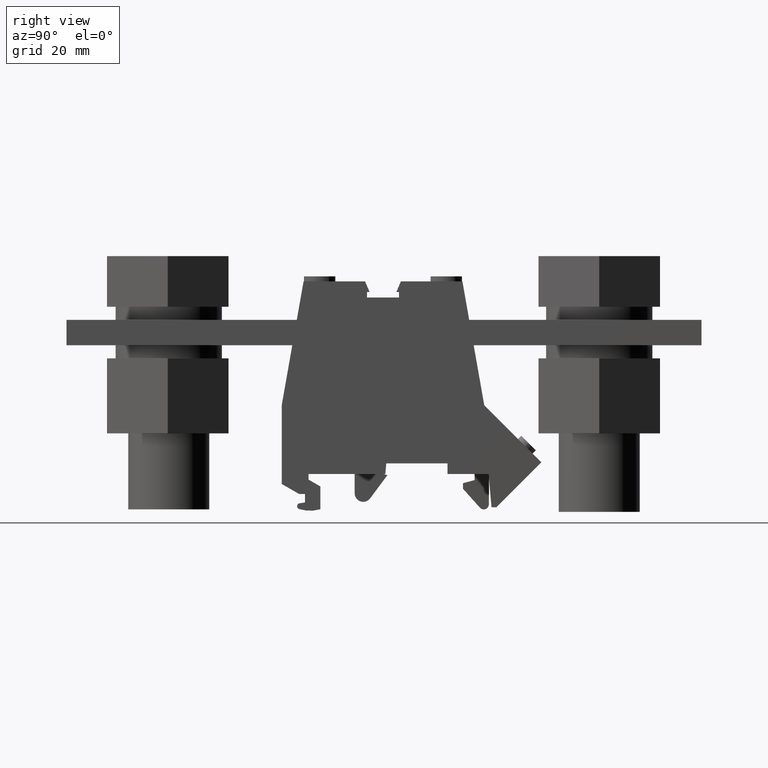
[diagram: clean part render]
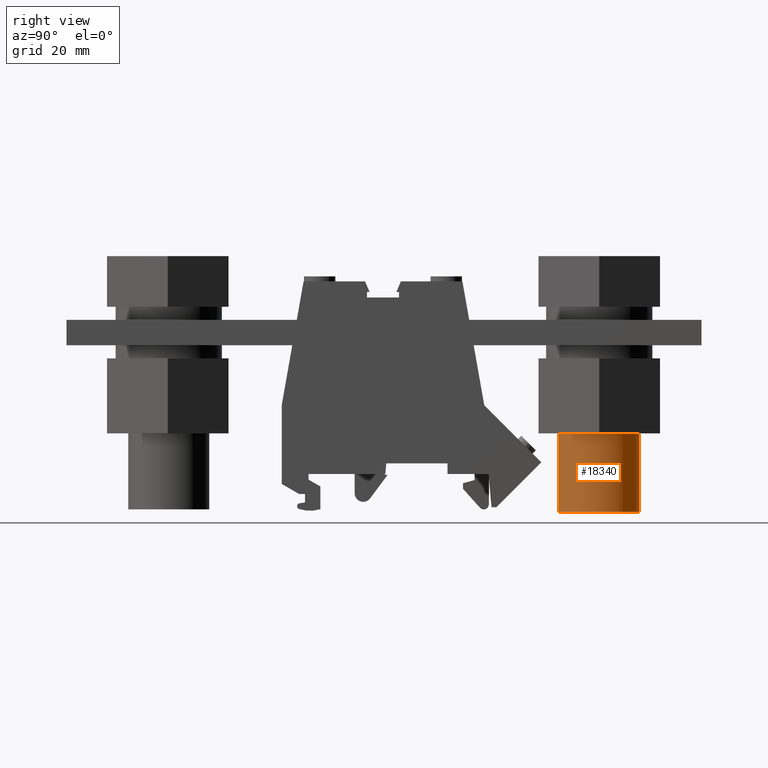
[diagram: same view with one face highlighted and labeled with its STEP entity id]
A machine part, right view. The second image highlights one B-rep face of the part: STEP entity #18340.
In plain terms, the highlighted cylindrical surface (partial cylindrical patch) has radius 8 mm, axis along (0, 0, 1).
Its self-contained STEP definition (entity closure, byte-faithful):
#2630=CARTESIAN_POINT('',(-197.907551201959,725.056092873311,
2.19999999999998));
#2640=DIRECTION('',(1.7489243749717E-28,1.,1.00974195868263E-28));
#2650=DIRECTION('',(-1.,1.7489243749717E-28,1.76596232397172E-56));
#2660=AXIS2_PLACEMENT_3D('',#2630,#2640,#2650);
#2670=CIRCLE('',#2660,8.);
#2680=CARTESIAN_POINT('',(-189.907551201959,725.056092873311,
2.19999999999998));
#2690=VERTEX_POINT('',#2680);
#2700=CARTESIAN_POINT('',(-205.907551201959,725.056092873311,
2.19999999999998));
#2710=VERTEX_POINT('',#2700);
#2740=EDGE_CURVE('',#2710,#2690,#2670,.T.);
#12160=CARTESIAN_POINT('',(-197.907551201959,740.556092873311,
2.19999999999998));
#12170=DIRECTION('',(1.7489243749717E-28,1.,1.00974195868263E-28));
#12180=DIRECTION('',(-1.,1.7489243749717E-28,1.76596232397172E-56));
#12190=AXIS2_PLACEMENT_3D('',#12160,#12170,#12180);
#12200=CIRCLE('',#12190,8.);
#12210=CARTESIAN_POINT('',(-205.907551201959,740.556092873311,
2.19999999999998));
#12220=VERTEX_POINT('',#12210);
#12230=CARTESIAN_POINT('',(-189.907551201959,740.556092873311,
2.19999999999998));
#12240=VERTEX_POINT('',#12230);
#12250=EDGE_CURVE('',#12220,#12240,#12200,.T.);
#18130=CARTESIAN_POINT('',(-197.907551201959,741.056092873312,
2.19999999999998));
#18140=DIRECTION('',(1.7489243749717E-28,1.,1.00974195868263E-28));
#18150=DIRECTION('',(-1.,1.7489243749717E-28,1.76596232397172E-56));
#18160=AXIS2_PLACEMENT_3D('',#18130,#18140,#18150);
#18170=CYLINDRICAL_SURFACE('',#18160,8.);
#18180=CARTESIAN_POINT('',(-205.907551201959,741.056092873312,
2.19999999999998));
#18190=DIRECTION('',(1.7489243749717E-28,1.,1.00974195868263E-28));
#18200=VECTOR('',#18190,1.);
#18210=LINE('',#18180,#18200);
#18220=EDGE_CURVE('',#2710,#12220,#18210,.T.);
#18230=ORIENTED_EDGE('',*,*,#18220,.F.);
#18240=ORIENTED_EDGE('',*,*,#12250,.F.);
#18250=CARTESIAN_POINT('',(-189.907551201959,741.056092873312,
2.19999999999998));
#18260=DIRECTION('',(1.7489243749717E-28,1.,1.00974195868263E-28));
#18270=VECTOR('',#18260,1.);
#18280=LINE('',#18250,#18270);
#18290=EDGE_CURVE('',#2690,#12240,#18280,.T.);
#18300=ORIENTED_EDGE('',*,*,#18290,.T.);
#18310=ORIENTED_EDGE('',*,*,#2740,.T.);
#18320=EDGE_LOOP('',(#18310,#18300,#18240,#18230));
#18330=FACE_OUTER_BOUND('',#18320,.T.);
#18340=ADVANCED_FACE('',(#18330),#18170,.T.);